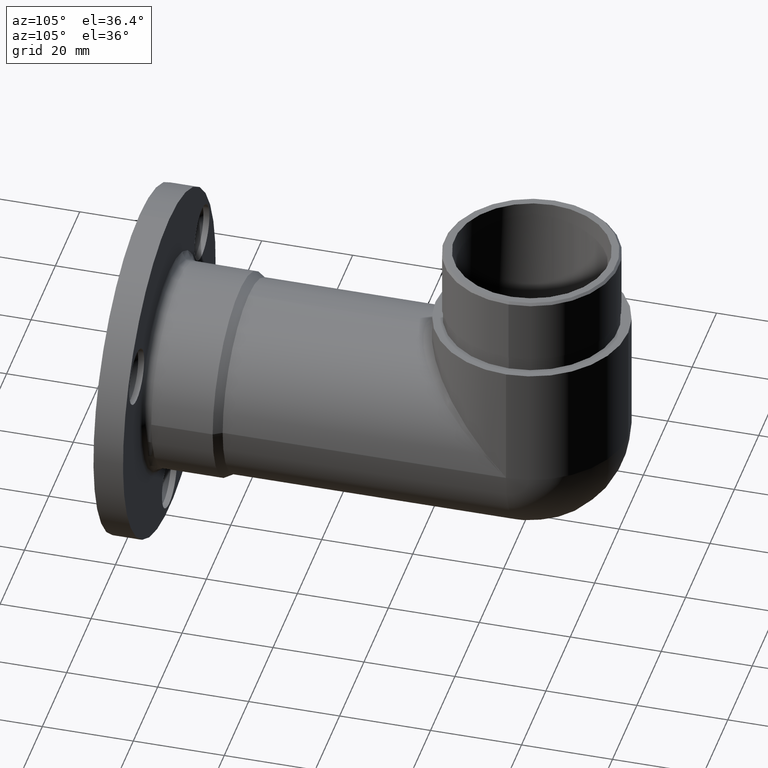
[diagram: clean part render]
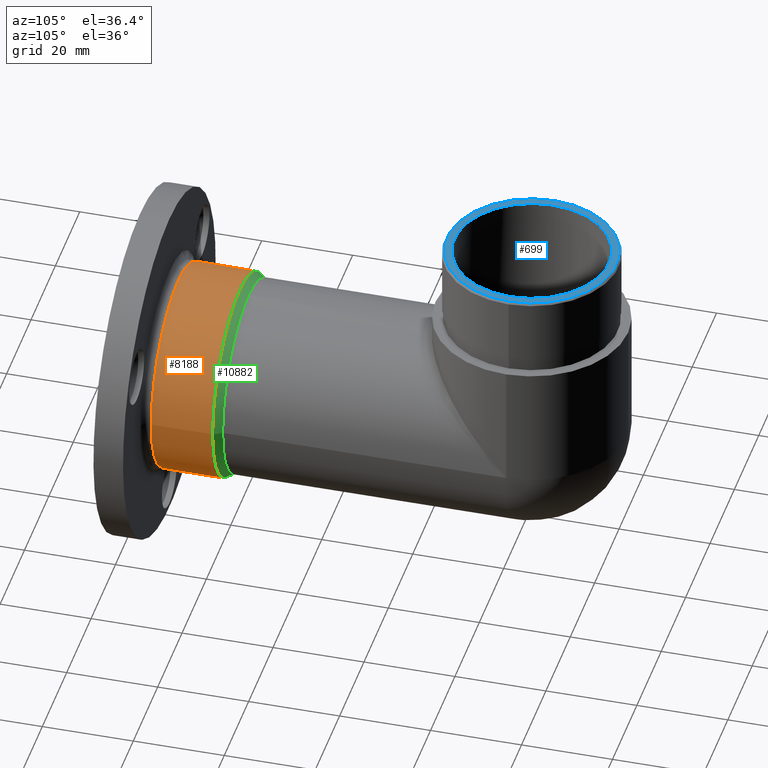
[diagram: same view with three faces highlighted in distinct colors, each labeled with its STEP entity id]
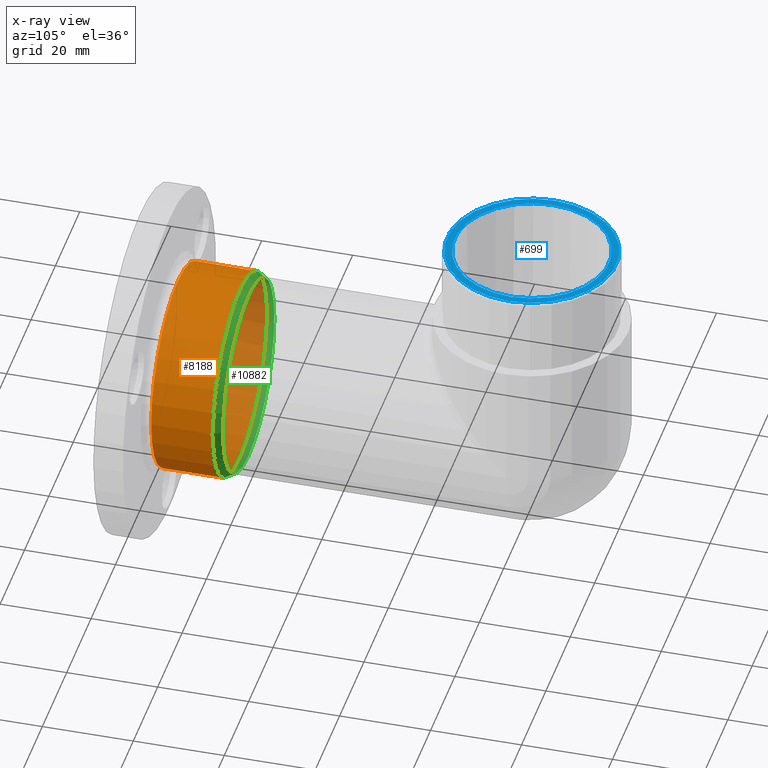
[diagram: x-ray of the same camera — body ghosted, the three highlighted faces saturated]
A machine part, auxiliary view with three faces highlighted in distinct colors.
The next image is the same camera in x-ray (body ghosted, the three faces saturated) — at least one of them is partly hidden behind the body in this view.
Their STEP definitions:

[orange] entity #8188 — the highlighted cylindrical surface (bore or boss wall) has radius 22.3 mm, axis along (-0, -1, -0).
#629 = CARTESIAN_POINT ( 'NONE',  ( 22.29999999999999400, 22.00000000000000000, 0.0000000000000000000 ) ) ;
#1467 = FACE_OUTER_BOUND ( 'NONE', #6520, .T. ) ;
#1553 = CARTESIAN_POINT ( 'NONE',  ( 0.0000000000000000000, 0.0000000000000000000, 0.0000000000000000000 ) ) ;
#2140 = AXIS2_PLACEMENT_3D ( 'NONE', #1553, #11921, #2740 ) ;
#2740 = DIRECTION ( 'NONE',  ( 1.000000000000000000, -2.192750485135992100E-016, 0.0000000000000000000 ) ) ;
#2834 = EDGE_CURVE ( 'NONE', #7292, #7292, #6726, .T. ) ;
#3565 = DIRECTION ( 'NONE',  ( 0.0000000000000000000, 1.000000000000000000, 0.0000000000000000000 ) ) ;
#4103 = ORIENTED_EDGE ( 'NONE', *, *, #6481, .T. ) ;
#4836 = CARTESIAN_POINT ( 'NONE',  ( 1.863837912365593400E-015, 8.500000000000000000, 0.0000000000000000000 ) ) ;
#4970 = CYLINDRICAL_SURFACE ( 'NONE', #2140, 22.29999999999999400 ) ;
#6323 = ORIENTED_EDGE ( 'NONE', *, *, #2834, .T. ) ;
#6481 = EDGE_CURVE ( 'NONE', #8565, #8565, #9414, .T. ) ;
#6520 = EDGE_LOOP ( 'NONE', ( #6323 ) ) ;
#6726 = CIRCLE ( 'NONE', #12209, 22.29999999999999000 ) ;
#6905 = CARTESIAN_POINT ( 'NONE',  ( 4.824051067299183000E-015, 22.00000000000000400, 0.0000000000000000000 ) ) ;
#7148 = DIRECTION ( 'NONE',  ( 0.0000000000000000000, 0.0000000000000000000, 1.000000000000000000 ) ) ;
#7292 = VERTEX_POINT ( 'NONE', #629 ) ;
#7759 = AXIS2_PLACEMENT_3D ( 'NONE', #4836, #3565, #7148 ) ;
#8188 = ADVANCED_FACE ( 'NONE', ( #11031, #1467 ), #4970, .T. ) ;
#8565 = VERTEX_POINT ( 'NONE', #10297 ) ;
#9414 = CIRCLE ( 'NONE', #7759, 22.29999999999999400 ) ;
#10297 = CARTESIAN_POINT ( 'NONE',  ( 1.863837912365593400E-015, 8.500000000000000000, 22.29999999999999400 ) ) ;
#10494 = DIRECTION ( 'NONE',  ( 1.000000000000000000, -1.555805808050948700E-016, 0.0000000000000000000 ) ) ;
#11031 = FACE_OUTER_BOUND ( 'NONE', #13457, .T. ) ;
#11921 = DIRECTION ( 'NONE',  ( -2.192750485135992100E-016, -1.000000000000000000, -0.0000000000000000000 ) ) ;
#12209 = AXIS2_PLACEMENT_3D ( 'NONE', #6905, #15170, #10494 ) ;
#13457 = EDGE_LOOP ( 'NONE', ( #4103 ) ) ;
#15170 = DIRECTION ( 'NONE',  ( -2.192750485135992100E-016, -1.000000000000000000, -0.0000000000000000000 ) ) ;

[blue] entity #699 — the highlighted planar face has unit normal (0, 0, 1).
#285 = DIRECTION ( 'NONE',  ( 0.0000000000000000000, 0.0000000000000000000, 1.000000000000000000 ) ) ;
#699 = ADVANCED_FACE ( 'NONE', ( #3645, #6204 ), #5259, .T. ) ;
#787 = AXIS2_PLACEMENT_3D ( 'NONE', #2588, #14454, #2485 ) ;
#862 = CIRCLE ( 'NONE', #787, 18.65000000000006600 ) ;
#1788 = DIRECTION ( 'NONE',  ( 1.000000000000000000, 0.0000000000000000000, -0.0000000000000000000 ) ) ;
#2485 = DIRECTION ( 'NONE',  ( 1.000000000000000000, 0.0000000000000000000, 0.0000000000000000000 ) ) ;
#2588 = CARTESIAN_POINT ( 'NONE',  ( 5.352986175202233300E-015, 86.20000000000003100, 44.80000000000000400 ) ) ;
#3212 = CIRCLE ( 'NONE', #8694, 17.00000000000000000 ) ;
#3269 = CARTESIAN_POINT ( 'NONE',  ( 18.65000000000007300, 86.20000000000003100, 44.80000000000000400 ) ) ;
#3645 = FACE_OUTER_BOUND ( 'NONE', #8461, .T. ) ;
#3804 = CARTESIAN_POINT ( 'NONE',  ( 5.352986175202233300E-015, 86.20000000000003100, 44.80000000000000400 ) ) ;
#4577 = EDGE_CURVE ( 'NONE', #6179, #6179, #3212, .T. ) ;
#4978 = DIRECTION ( 'NONE',  ( 1.000000000000000000, 0.0000000000000000000, 0.0000000000000000000 ) ) ;
#5079 = VERTEX_POINT ( 'NONE', #3269 ) ;
#5206 = CARTESIAN_POINT ( 'NONE',  ( 5.352986175202233300E-015, 86.20000000000003100, 44.80000000000000400 ) ) ;
#5259 = PLANE ( 'NONE',  #9384 ) ;
#5460 = ORIENTED_EDGE ( 'NONE', *, *, #4577, .F. ) ;
#6179 = VERTEX_POINT ( 'NONE', #15131 ) ;
#6204 = FACE_BOUND ( 'NONE', #10938, .T. ) ;
#8461 = EDGE_LOOP ( 'NONE', ( #9433 ) ) ;
#8694 = AXIS2_PLACEMENT_3D ( 'NONE', #3804, #285, #4978 ) ;
#9384 = AXIS2_PLACEMENT_3D ( 'NONE', #5206, #14700, #1788 ) ;
#9433 = ORIENTED_EDGE ( 'NONE', *, *, #13156, .T. ) ;
#10938 = EDGE_LOOP ( 'NONE', ( #5460 ) ) ;
#13156 = EDGE_CURVE ( 'NONE', #5079, #5079, #862, .T. ) ;
#14454 = DIRECTION ( 'NONE',  ( 0.0000000000000000000, 0.0000000000000000000, 1.000000000000000000 ) ) ;
#14700 = DIRECTION ( 'NONE',  ( 0.0000000000000000000, 0.0000000000000000000, 1.000000000000000000 ) ) ;
#15131 = CARTESIAN_POINT ( 'NONE',  ( 17.00000000000000700, 86.20000000000003100, 44.80000000000000400 ) ) ;

[green] entity #10882 — the highlighted conical surface has half-angle 30 deg.
#629 = CARTESIAN_POINT ( 'NONE',  ( 22.29999999999999400, 22.00000000000000000, 0.0000000000000000000 ) ) ;
#758 = EDGE_CURVE ( 'NONE', #3377, #12254, #12827, .T. ) ;
#2038 = DIRECTION ( 'NONE',  ( -2.192750485135992100E-016, -1.000000000000000000, -0.0000000000000000000 ) ) ;
#2041 = AXIS2_PLACEMENT_3D ( 'NONE', #6297, #6190, #14453 ) ;
#2657 = CARTESIAN_POINT ( 'NONE',  ( -21.19999999999999600, 23.90525588832576200, -6.938893903907227600E-015 ) ) ;
#2834 = EDGE_CURVE ( 'NONE', #7292, #7292, #6726, .T. ) ;
#2924 = CONICAL_SURFACE ( 'NONE', #2041, 22.29999999999999000, 0.5235987755982948200 ) ;
#3190 = DIRECTION ( 'NONE',  ( 1.000000000000000000, -1.636531581110195400E-016, 0.0000000000000000000 ) ) ;
#3377 = VERTEX_POINT ( 'NONE', #6839 ) ;
#3562 = ORIENTED_EDGE ( 'NONE', *, *, #758, .T. ) ;
#3569 = DIRECTION ( 'NONE',  ( -2.192750485135992100E-016, -1.000000000000000000, -0.0000000000000000000 ) ) ;
#3684 = AXIS2_PLACEMENT_3D ( 'NONE', #10698, #13119, #3835 ) ;
#3835 = DIRECTION ( 'NONE',  ( 1.000000000000000000, -1.636531581110195400E-016, 0.0000000000000000000 ) ) ;
#4322 = EDGE_CURVE ( 'NONE', #5848, #3377, #10740, .T. ) ;
#4341 = ORIENTED_EDGE ( 'NONE', *, *, #5619, .T. ) ;
#4347 = CARTESIAN_POINT ( 'NONE',  ( 3.469446951953614200E-015, 23.90525588832576200, -21.20000000000000300 ) ) ;
#4435 = DIRECTION ( 'NONE',  ( -2.192750485135992100E-016, -1.000000000000000000, -0.0000000000000000000 ) ) ;
#5510 = CARTESIAN_POINT ( 'NONE',  ( 5.241826144642635900E-015, 23.90525588832576900, 0.0000000000000000000 ) ) ;
#5619 = EDGE_CURVE ( 'NONE', #6678, #5848, #12841, .T. ) ;
#5848 = VERTEX_POINT ( 'NONE', #4347 ) ;
#5972 = DIRECTION ( 'NONE',  ( 1.000000000000000000, -1.636531581110195400E-016, 0.0000000000000000000 ) ) ;
#6101 = EDGE_LOOP ( 'NONE', ( #3562, #13370, #4341, #6988 ) ) ;
#6190 = DIRECTION ( 'NONE',  ( -2.192750485135992100E-016, -1.000000000000000000, -0.0000000000000000000 ) ) ;
#6297 = CARTESIAN_POINT ( 'NONE',  ( 4.824051067299183000E-015, 22.00000000000000400, 0.0000000000000000000 ) ) ;
#6678 = VERTEX_POINT ( 'NONE', #2657 ) ;
#6726 = CIRCLE ( 'NONE', #12209, 22.29999999999999000 ) ;
#6764 = ORIENTED_EDGE ( 'NONE', *, *, #2834, .F. ) ;
#6839 = CARTESIAN_POINT ( 'NONE',  ( 21.20000000000000300, 23.90525588832576200, 5.463090161438709100E-031 ) ) ;
#6905 = CARTESIAN_POINT ( 'NONE',  ( 4.824051067299183000E-015, 22.00000000000000400, 0.0000000000000000000 ) ) ;
#6988 = ORIENTED_EDGE ( 'NONE', *, *, #4322, .T. ) ;
#7292 = VERTEX_POINT ( 'NONE', #629 ) ;
#8236 = CARTESIAN_POINT ( 'NONE',  ( 5.241826144642635900E-015, 23.90525588832576900, 0.0000000000000000000 ) ) ;
#8371 = CARTESIAN_POINT ( 'NONE',  ( 3.469446951953614200E-015, 23.90525588832576900, 21.19999999999999900 ) ) ;
#9193 = FACE_BOUND ( 'NONE', #6101, .T. ) ;
#10329 = EDGE_LOOP ( 'NONE', ( #6764 ) ) ;
#10353 = AXIS2_PLACEMENT_3D ( 'NONE', #12472, #2038, #3190 ) ;
#10494 = DIRECTION ( 'NONE',  ( 1.000000000000000000, -1.555805808050948700E-016, 0.0000000000000000000 ) ) ;
#10698 = CARTESIAN_POINT ( 'NONE',  ( 5.241826144642635900E-015, 23.90525588832576900, 0.0000000000000000000 ) ) ;
#10740 = CIRCLE ( 'NONE', #10353, 21.19999999999999900 ) ;
#10786 = CIRCLE ( 'NONE', #13501, 21.19999999999999900 ) ;
#10882 = ADVANCED_FACE ( 'NONE', ( #9193, #13995 ), #2924, .T. ) ;
#12209 = AXIS2_PLACEMENT_3D ( 'NONE', #6905, #15170, #10494 ) ;
#12254 = VERTEX_POINT ( 'NONE', #8371 ) ;
#12472 = CARTESIAN_POINT ( 'NONE',  ( 5.241826144642635900E-015, 23.90525588832576900, 0.0000000000000000000 ) ) ;
#12530 = DIRECTION ( 'NONE',  ( 1.000000000000000000, -1.636531581110195400E-016, 0.0000000000000000000 ) ) ;
#12827 = CIRCLE ( 'NONE', #14927, 21.19999999999999900 ) ;
#12841 = CIRCLE ( 'NONE', #3684, 21.19999999999999900 ) ;
#13119 = DIRECTION ( 'NONE',  ( -2.192750485135992100E-016, -1.000000000000000000, -0.0000000000000000000 ) ) ;
#13370 = ORIENTED_EDGE ( 'NONE', *, *, #13618, .T. ) ;
#13501 = AXIS2_PLACEMENT_3D ( 'NONE', #8236, #3569, #5972 ) ;
#13618 = EDGE_CURVE ( 'NONE', #12254, #6678, #10786, .T. ) ;
#13995 = FACE_OUTER_BOUND ( 'NONE', #10329, .T. ) ;
#14453 = DIRECTION ( 'NONE',  ( 1.000000000000000000, -1.555805808050948700E-016, 0.0000000000000000000 ) ) ;
#14927 = AXIS2_PLACEMENT_3D ( 'NONE', #5510, #4435, #12530 ) ;
#15170 = DIRECTION ( 'NONE',  ( -2.192750485135992100E-016, -1.000000000000000000, -0.0000000000000000000 ) ) ;